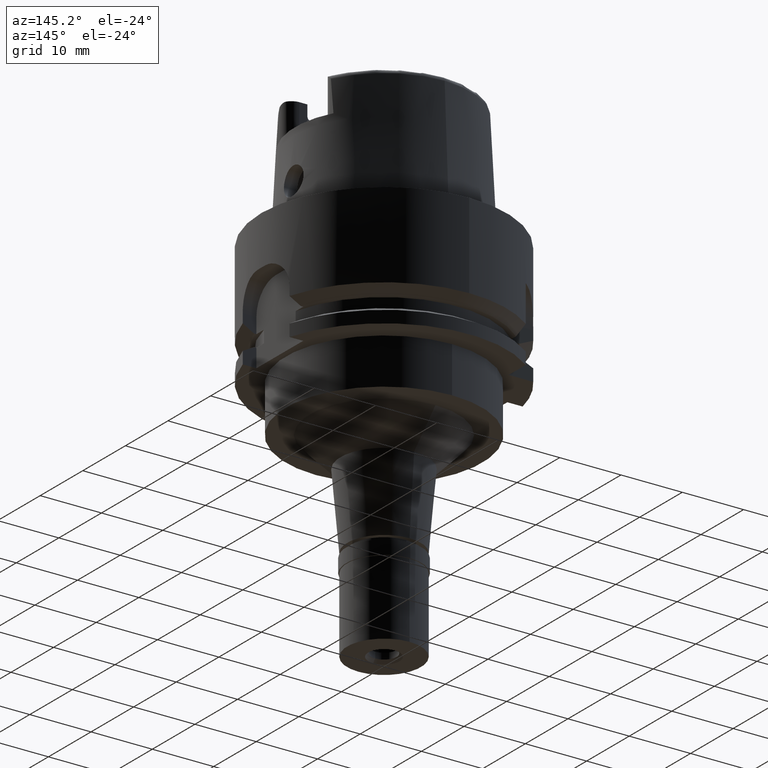
[diagram: clean part render]
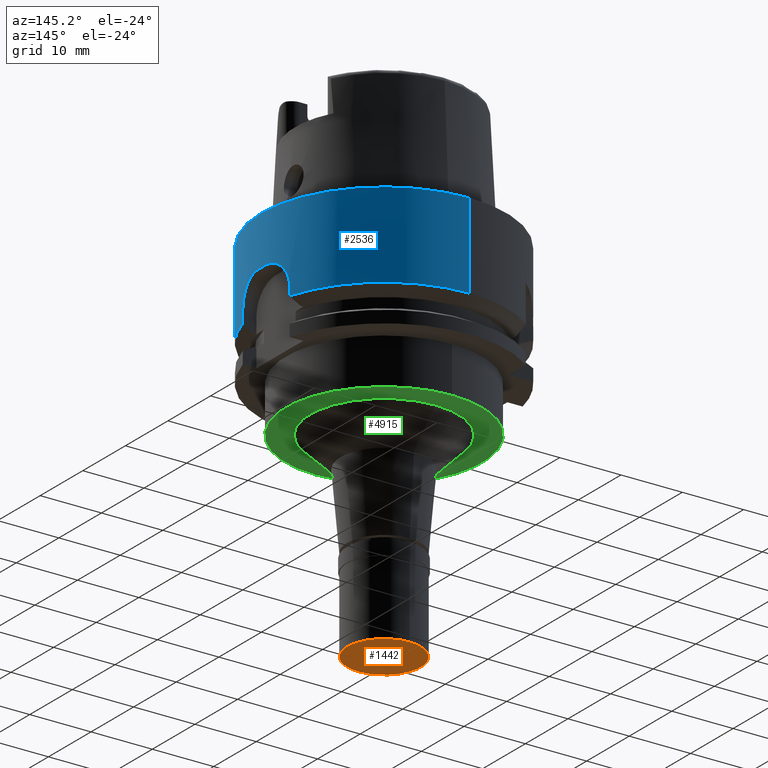
[diagram: same view with three faces highlighted in distinct colors, each labeled with its STEP entity id]
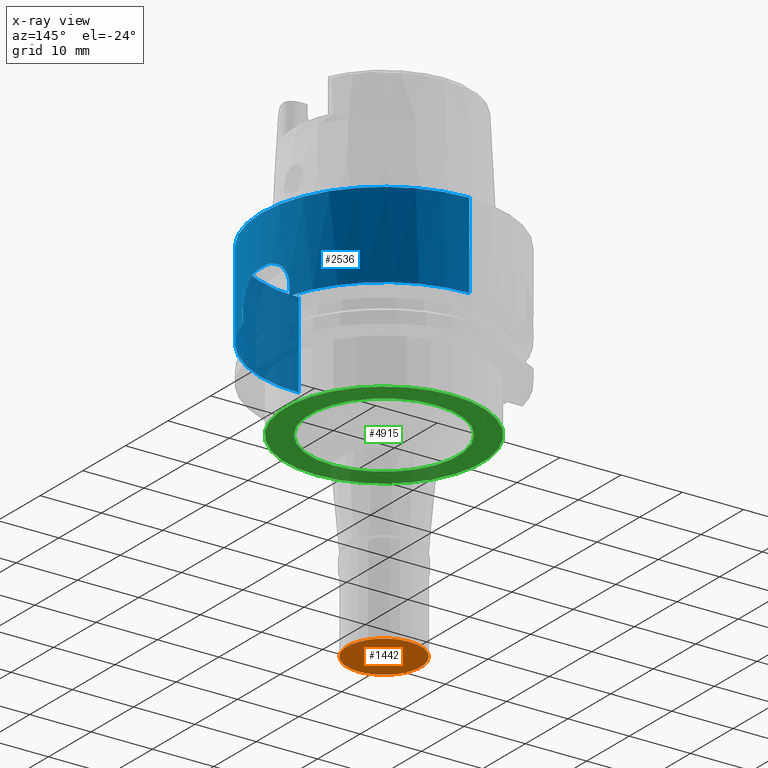
[diagram: x-ray of the same camera — body ghosted, the three highlighted faces saturated]
A machine part, auxiliary view with three faces highlighted in distinct colors.
The next image is the same camera in x-ray (body ghosted, the three faces saturated) — at least one of them is partly hidden behind the body in this view.
Their STEP definitions:

[orange] entity #1442 — the highlighted planar face has unit normal (0, 0, 1).
#163 = CARTESIAN_POINT ( 'NONE',  ( 0.0000000000000000000, -6.000000000000000000, -14.50000000000000000 ) ) ;
#346 = AXIS2_PLACEMENT_3D ( 'NONE', #3331, #4565, #492 ) ;
#492 = DIRECTION ( 'NONE',  ( 0.0000000000000000000, 1.000000000000000000, 0.0000000000000000000 ) ) ;
#523 = ORIENTED_EDGE ( 'NONE', *, *, #4232, .F. ) ;
#596 = EDGE_CURVE ( 'NONE', #1057, #4833, #3185, .T. ) ;
#784 = CIRCLE ( 'NONE', #3675, 2.550000000000000266 ) ;
#972 = FACE_BOUND ( 'NONE', #2917, .T. ) ;
#1057 = VERTEX_POINT ( 'NONE', #163 ) ;
#1248 = DIRECTION ( 'NONE',  ( 0.0000000000000000000, 0.0000000000000000000, -1.000000000000000000 ) ) ;
#1292 = ORIENTED_EDGE ( 'NONE', *, *, #4263, .F. ) ;
#1364 = DIRECTION ( 'NONE',  ( 0.0000000000000000000, -1.000000000000000000, 0.0000000000000000000 ) ) ;
#1442 = ADVANCED_FACE ( 'NONE', ( #5011, #972 ), #3845, .F. ) ;
#1775 = DIRECTION ( 'NONE',  ( 0.0000000000000000000, 0.0000000000000000000, 1.000000000000000000 ) ) ;
#1915 = CIRCLE ( 'NONE', #3939, 2.550000000000000266 ) ;
#2083 = CIRCLE ( 'NONE', #346, 6.000000000000000000 ) ;
#2467 = DIRECTION ( 'NONE',  ( 0.0000000000000000000, -1.000000000000000000, 0.0000000000000000000 ) ) ;
#2564 = VERTEX_POINT ( 'NONE', #3902 ) ;
#2598 = DIRECTION ( 'NONE',  ( 0.0000000000000000000, 0.0000000000000000000, 1.000000000000000000 ) ) ;
#2917 = EDGE_LOOP ( 'NONE', ( #4650, #1292 ) ) ;
#3011 = CARTESIAN_POINT ( 'NONE',  ( 0.0000000000000000000, 0.0000000000000000000, -14.50000000000000000 ) ) ;
#3185 = CIRCLE ( 'NONE', #3188, 6.000000000000000000 ) ;
#3188 = AXIS2_PLACEMENT_3D ( 'NONE', #3897, #1775, #1364 ) ;
#3331 = CARTESIAN_POINT ( 'NONE',  ( 0.0000000000000000000, 0.0000000000000000000, -14.50000000000000000 ) ) ;
#3606 = VERTEX_POINT ( 'NONE', #3803 ) ;
#3675 = AXIS2_PLACEMENT_3D ( 'NONE', #4540, #1248, #2467 ) ;
#3803 = CARTESIAN_POINT ( 'NONE',  ( 0.0000000000000000000, 2.550000000000000266, -14.50000000000000000 ) ) ;
#3845 = PLANE ( 'NONE',  #4205 ) ;
#3879 = DIRECTION ( 'NONE',  ( 1.000000000000000000, 0.0000000000000000000, 0.0000000000000000000 ) ) ;
#3897 = CARTESIAN_POINT ( 'NONE',  ( 0.0000000000000000000, 0.0000000000000000000, -14.50000000000000000 ) ) ;
#3902 = CARTESIAN_POINT ( 'NONE',  ( 0.0000000000000000000, -2.550000000000000266, -14.50000000000000000 ) ) ;
#3939 = AXIS2_PLACEMENT_3D ( 'NONE', #4712, #5118, #3954 ) ;
#3954 = DIRECTION ( 'NONE',  ( 0.0000000000000000000, 1.000000000000000000, 0.0000000000000000000 ) ) ;
#4155 = EDGE_CURVE ( 'NONE', #3606, #2564, #1915, .T. ) ;
#4205 = AXIS2_PLACEMENT_3D ( 'NONE', #3011, #2598, #3879 ) ;
#4232 = EDGE_CURVE ( 'NONE', #4833, #1057, #2083, .T. ) ;
#4254 = EDGE_LOOP ( 'NONE', ( #523, #4403 ) ) ;
#4263 = EDGE_CURVE ( 'NONE', #2564, #3606, #784, .T. ) ;
#4403 = ORIENTED_EDGE ( 'NONE', *, *, #596, .F. ) ;
#4540 = CARTESIAN_POINT ( 'NONE',  ( 0.0000000000000000000, 0.0000000000000000000, -14.50000000000000000 ) ) ;
#4565 = DIRECTION ( 'NONE',  ( 0.0000000000000000000, 0.0000000000000000000, 1.000000000000000000 ) ) ;
#4650 = ORIENTED_EDGE ( 'NONE', *, *, #4155, .F. ) ;
#4712 = CARTESIAN_POINT ( 'NONE',  ( 0.0000000000000000000, 0.0000000000000000000, -14.50000000000000000 ) ) ;
#4726 = CARTESIAN_POINT ( 'NONE',  ( 0.0000000000000000000, 6.000000000000000000, -14.50000000000000000 ) ) ;
#4833 = VERTEX_POINT ( 'NONE', #4726 ) ;
#5011 = FACE_OUTER_BOUND ( 'NONE', #4254, .T. ) ;
#5118 = DIRECTION ( 'NONE',  ( 0.0000000000000000000, 0.0000000000000000000, -1.000000000000000000 ) ) ;

[blue] entity #2536 — the highlighted cylindrical surface (partial cylindrical patch) has radius 20 mm, axis along (0, 0, -1).
#6 = DIRECTION ( 'NONE',  ( 0.0000000000000000000, 0.0000000000000000000, -1.000000000000000000 ) ) ;
#20 = VERTEX_POINT ( 'NONE', #4233 ) ;
#62 = FACE_OUTER_BOUND ( 'NONE', #1587, .T. ) ;
#138 = CARTESIAN_POINT ( 'NONE',  ( 19.55296419441644673, 4.205003847198735656, -9.341197098581975666 ) ) ;
#139 = CARTESIAN_POINT ( 'NONE',  ( 19.45475001896209477, -4.645027512865630648, -9.844582148829520207 ) ) ;
#149 = ORIENTED_EDGE ( 'NONE', *, *, #1774, .T. ) ;
#168 = CARTESIAN_POINT ( 'NONE',  ( 19.90130048979596822, -1.985477844311701601, -8.106792410126946180 ) ) ;
#197 = CARTESIAN_POINT ( 'NONE',  ( 19.86146913379048229, -2.348870910567845804, -8.206248310992075190 ) ) ;
#219 = CARTESIAN_POINT ( 'NONE',  ( 19.31804990225733221, 5.178514594697598561, -10.82961816772562180 ) ) ;
#220 = CARTESIAN_POINT ( 'NONE',  ( 19.69274280960210532, -3.492270246692281699, -8.753189259784717180 ) ) ;
#243 = CARTESIAN_POINT ( 'NONE',  ( 19.78036263143424023, -2.958436038870658980, -8.445803820326757361 ) ) ;
#283 = CARTESIAN_POINT ( 'NONE',  ( 19.22888452303000051, 5.500000000000000000, -12.50000000000000000 ) ) ;
#345 = AXIS2_PLACEMENT_3D ( 'NONE', #631, #3466, #3822 ) ;
#429 = CARTESIAN_POINT ( 'NONE',  ( 0.0000000000000000000, -20.00000000000000000, 2.605323364453999397E-14 ) ) ;
#473 = CYLINDRICAL_SURFACE ( 'NONE', #5377, 20.00000000000000000 ) ;
#586 = CARTESIAN_POINT ( 'NONE',  ( 19.69005981295651253, -3.507380173998807749, -8.763261857095093532 ) ) ;
#610 = CARTESIAN_POINT ( 'NONE',  ( 19.66628160559911009, 3.637934761167456177, -8.851330630267426613 ) ) ;
#611 = CARTESIAN_POINT ( 'NONE',  ( 19.37849366734219814, -4.950199303947448115, -10.34065976105194729 ) ) ;
#631 = CARTESIAN_POINT ( 'NONE',  ( 0.0000000000000000000, 1.516112737344000072E-14, -8.000000000000000000 ) ) ;
#642 = CARTESIAN_POINT ( 'NONE',  ( 19.22888452303000051, 5.500000000000000000, -12.50000000000000000 ) ) ;
#643 = CARTESIAN_POINT ( 'NONE',  ( 19.82004296057248283, -2.676438803614427542, -8.323919434735174150 ) ) ;
#665 = CARTESIAN_POINT ( 'NONE',  ( 19.52092648649921713, 4.352013357736789878, -9.497352550121828330 ) ) ;
#666 = CARTESIAN_POINT ( 'NONE',  ( 19.69235704559155309, -3.494444581088437918, -8.754636474597065288 ) ) ;
#760 = CARTESIAN_POINT ( 'NONE',  ( 19.80285723665335240, 2.801244792829966634, -8.376053882364153935 ) ) ;
#838 = LINE ( 'NONE', #429, #3148 ) ;
#895 = DIRECTION ( 'NONE',  ( 0.0000000000000000000, 4.549132851063000272E-14, -1.000000000000000000 ) ) ;
#956 = CARTESIAN_POINT ( 'NONE',  ( 19.25972180874073558, 5.392789425413389459, -11.51281114946818107 ) ) ;
#958 = ORIENTED_EDGE ( 'NONE', *, *, #5294, .F. ) ;
#983 = LINE ( 'NONE', #4067, #3909 ) ;
#988 = CARTESIAN_POINT ( 'NONE',  ( 19.32043459714229883, 5.169573308567883885, -10.80746306776317311 ) ) ;
#1017 = CARTESIAN_POINT ( 'NONE',  ( 19.39600761098000348, -4.882168379427534788, -10.21950968929079906 ) ) ;
#1020 = EDGE_CURVE ( 'NONE', #3853, #4007, #983, .T. ) ;
#1068 = CARTESIAN_POINT ( 'NONE',  ( 19.59903277049964743, 3.985266028511206038, -9.129531640290618810 ) ) ;
#1069 = CARTESIAN_POINT ( 'NONE',  ( 19.35532304041984020, -5.038565840620426783, -10.51400096850839816 ) ) ;
#1077 = ORIENTED_EDGE ( 'NONE', *, *, #3895, .F. ) ;
#1091 = ORIENTED_EDGE ( 'NONE', *, *, #2334, .T. ) ;
#1096 = CARTESIAN_POINT ( 'NONE',  ( 19.32361500977883040, -5.157669752052217227, -10.77843254344513291 ) ) ;
#1111 = CARTESIAN_POINT ( 'NONE',  ( 0.0000000000000000000, 1.516112737344000072E-14, 4.263256414560999963E-14 ) ) ;
#1145 = DIRECTION ( 'NONE',  ( -9.328064232721404041E-08, -3.261220581674141683E-07, -0.9999999999999424904 ) ) ;
#1181 = CARTESIAN_POINT ( 'NONE',  ( 19.22888455244999761, 5.499999897136000016, -13.97927491984000170 ) ) ;
#1260 = ORIENTED_EDGE ( 'NONE', *, *, #3144, .F. ) ;
#1268 = DIRECTION ( 'NONE',  ( 0.0000000000000000000, 0.0000000000000000000, 1.000000000000000000 ) ) ;
#1269 = CARTESIAN_POINT ( 'NONE',  ( 19.22888452303000051, -5.500000000000000000, -12.50000000000000000 ) ) ;
#1368 = CARTESIAN_POINT ( 'NONE',  ( 0.0000000000000000000, 1.516112737344000072E-14, 23.80000000000000071 ) ) ;
#1390 = CARTESIAN_POINT ( 'NONE',  ( 19.28670443373762922, 5.294861695531413837, -11.15473780887399968 ) ) ;
#1422 = CARTESIAN_POINT ( 'NONE',  ( 19.48952998782354129, 4.491951542668962460, -9.660445852778138942 ) ) ;
#1423 = CARTESIAN_POINT ( 'NONE',  ( 19.83212263906065687, -2.585548439230807016, -8.288267333564322215 ) ) ;
#1425 = ORIENTED_EDGE ( 'NONE', *, *, #1020, .F. ) ;
#1448 = CARTESIAN_POINT ( 'NONE',  ( 19.32540896272644559, -5.150933915506874960, -10.76223295654363454 ) ) ;
#1460 = ORIENTED_EDGE ( 'NONE', *, *, #4431, .T. ) ;
#1475 = CARTESIAN_POINT ( 'NONE',  ( 19.72182351028626002, -3.324155796168377641, -8.646448939527333621 ) ) ;
#1498 = CARTESIAN_POINT ( 'NONE',  ( 19.32433016885746113, -5.154984032051151743, -10.77196065785564549 ) ) ;
#1587 = EDGE_LOOP ( 'NONE', ( #149, #958, #1077, #2245, #1425, #1091, #2355, #1460, #4429, #1260 ) ) ;
#1615 = CARTESIAN_POINT ( 'NONE',  ( 0.0000000000000000000, 1.047199923064999921E-14, -13.97927405783999966 ) ) ;
#1710 = AXIS2_PLACEMENT_3D ( 'NONE', #1111, #6, #4045 ) ;
#1774 = EDGE_CURVE ( 'NONE', #2959, #20, #4627, .T. ) ;
#1800 = CARTESIAN_POINT ( 'NONE',  ( 19.31947846059804874, 5.173159134743519516, -10.81632376075026691 ) ) ;
#1829 = CARTESIAN_POINT ( 'NONE',  ( 19.74957711522806392, -3.155380211574884797, -8.549072167331129180 ) ) ;
#1840 = CARTESIAN_POINT ( 'NONE',  ( 19.22888452303000051, -5.499999999998999911, -13.97927405783999966 ) ) ;
#1863 = CARTESIAN_POINT ( 'NONE',  ( 19.81758751915466732, -2.694603442504719837, -8.331257369122207379 ) ) ;
#1888 = CARTESIAN_POINT ( 'NONE',  ( 19.26935846052533918, 5.358219424021689825, -11.36942809227169704 ) ) ;
#1889 = CARTESIAN_POINT ( 'NONE',  ( 19.55921014826529003, -4.175848118539613907, -9.311895862119277112 ) ) ;
#1911 = CARTESIAN_POINT ( 'NONE',  ( 19.82370700702814403, -2.649184798636287308, -8.313013169469069652 ) ) ;
#1974 = VERTEX_POINT ( 'NONE', #1269 ) ;
#1981 = LINE ( 'NONE', #3696, #2324 ) ;
#2031 = B_SPLINE_CURVE_WITH_KNOTS ( 'NONE', 3,
 ( #642, #2260, #4414, #956, #1888, #1390, #3976, #3058, #3509, #219, #1800, #988, #5170, #2209, #2641, #3562, #3951, #1422, #5221, #665, #3139, #3084, #4818, #4760, #138, #2668, #1068, #4362, #610, #2723, #3866, #5277, #4439, #4463, #760, #5349, #4074, #3588, #3613 ),
 .UNSPECIFIED., .F., .F.,
 ( 4, 2, 2, 1, 1, 1, 1, 2, 2, 2, 2, 2, 1, 1, 2, 2, 2, 2, 2, 1, 2, 2, 4 ),
 ( 0.0000000000000000000, 0.1250000000000127398, 0.1875000000000190958, 0.2187500000000222322, 0.2343750000000238698, 0.2421875000000249245, 0.2460937500000258127, 0.2480468750000261735, 0.2500000000000265343, 0.3750000000000142109, 0.4375000000000082712, 0.4687500000000053291, 0.4843750000000038303, 0.4921875000000034417, 0.4960937500000034417, 0.5000000000000034417, 0.5625000000000032196, 0.6250000000000029976, 0.6875000000000026645, 0.7187500000000024425, 0.7343750000000021094, 0.7500000000000017764, 1.000000000000000000 ),
 .UNSPECIFIED. ) ;
#2039 = EDGE_CURVE ( 'NONE', #2848, #4989, #838, .T. ) ;
#2209 = CARTESIAN_POINT ( 'NONE',  ( 19.34392774223625366, 5.081398271265452848, -10.59154111409075583 ) ) ;
#2212 = CARTESIAN_POINT ( 'NONE',  ( 19.70267184871935839, -3.435874800762945380, -8.716184561157648503 ) ) ;
#2235 = CARTESIAN_POINT ( 'NONE',  ( 19.33325722711048300, -5.121510815747222445, -10.69317572620611756 ) ) ;
#2245 = ORIENTED_EDGE ( 'NONE', *, *, #4553, .T. ) ;
#2260 = CARTESIAN_POINT ( 'NONE',  ( 19.22888452302999696, 5.499999999999999112, -12.22452543201927888 ) ) ;
#2261 = CARTESIAN_POINT ( 'NONE',  ( 19.96138875464934870, -1.271571913018608946, -8.000000000000000000 ) ) ;
#2289 = CARTESIAN_POINT ( 'NONE',  ( 19.56053727397975806, -4.169622719901863839, -9.305706481945396291 ) ) ;
#2309 = CARTESIAN_POINT ( 'NONE',  ( 19.64440581769368777, -3.753017091490892465, -8.939610780094586318 ) ) ;
#2324 = VECTOR ( 'NONE', #1145, 1000.000000000000000 ) ;
#2334 = EDGE_CURVE ( 'NONE', #3853, #2848, #5034, .T. ) ;
#2355 = ORIENTED_EDGE ( 'NONE', *, *, #2039, .T. ) ;
#2536 = ADVANCED_FACE ( 'NONE', ( #62 ), #473, .T. ) ;
#2591 = CARTESIAN_POINT ( 'NONE',  ( 0.0000000000000000000, 20.00000000000000000, -13.97927405783999966 ) ) ;
#2641 = CARTESIAN_POINT ( 'NONE',  ( 19.37460705601824529, 4.968141796494184526, -10.35745692778625049 ) ) ;
#2642 = CARTESIAN_POINT ( 'NONE',  ( 19.84841866433621860, -2.458145572844637083, -8.241564943246137531 ) ) ;
#2644 = VERTEX_POINT ( 'NONE', #1840 ) ;
#2664 = DIRECTION ( 'NONE',  ( 0.0000000000000000000, -4.549132851063000272E-14, -1.000000000000000000 ) ) ;
#2668 = CARTESIAN_POINT ( 'NONE',  ( 19.57669243206868970, 4.094476975649305572, -9.229513419691846465 ) ) ;
#2669 = CARTESIAN_POINT ( 'NONE',  ( 19.56252047788020576, -4.160306109553071785, -9.296470942878881871 ) ) ;
#2698 = CARTESIAN_POINT ( 'NONE',  ( 19.69198582758710714, -3.496535353582432837, -8.756030016343171241 ) ) ;
#2723 = CARTESIAN_POINT ( 'NONE',  ( 19.71061695534601910, 3.394883020104607851, -8.687386291031449659 ) ) ;
#2724 = CARTESIAN_POINT ( 'NONE',  ( 19.34811621286810990, -5.065741419847156202, -10.57039266656771304 ) ) ;
#2832 = CARTESIAN_POINT ( 'NONE',  ( 19.97498435543999662, -1.000000000000000000, -8.000000000000000000 ) ) ;
#2839 = DIRECTION ( 'NONE',  ( -1.988894616136989745E-08, 6.953698802927961822E-08, 0.9999999999999973355 ) ) ;
#2848 = VERTEX_POINT ( 'NONE', #3703 ) ;
#2865 = CIRCLE ( 'NONE', #4385, 20.00000000000000000 ) ;
#2959 = VERTEX_POINT ( 'NONE', #2832 ) ;
#2995 = CARTESIAN_POINT ( 'NONE',  ( 0.0000000000000000000, 1.047199923064999921E-14, -13.97927405783999966 ) ) ;
#3058 = CARTESIAN_POINT ( 'NONE',  ( 19.30832667117934776, 5.214864524820000291, -10.92283486259329628 ) ) ;
#3084 = CARTESIAN_POINT ( 'NONE',  ( 19.54241317768097730, 4.253900879331266260, -9.391460221044306778 ) ) ;
#3085 = CARTESIAN_POINT ( 'NONE',  ( 19.73879052446683957, -3.222291276281035621, -8.586223659239390571 ) ) ;
#3114 = CARTESIAN_POINT ( 'NONE',  ( 19.32339560065396356, -5.158493796155410038, -10.78042079026245581 ) ) ;
#3139 = CARTESIAN_POINT ( 'NONE',  ( 19.53068917781459390, 4.307772580741984214, -9.448423039921937772 ) ) ;
#3140 = CARTESIAN_POINT ( 'NONE',  ( 19.94126833813949773, -1.553962042627266005, -8.024635870376794600 ) ) ;
#3144 = EDGE_CURVE ( 'NONE', #2959, #1974, #4509, .T. ) ;
#3148 = VECTOR ( 'NONE', #895, 1000.000000000000000 ) ;
#3306 = EDGE_CURVE ( 'NONE', #1974, #2644, #1981, .T. ) ;
#3401 = DIRECTION ( 'NONE',  ( 0.0000000000000000000, -1.000000000000000000, 0.0000000000000000000 ) ) ;
#3466 = DIRECTION ( 'NONE',  ( 0.0000000000000000000, 0.0000000000000000000, 1.000000000000000000 ) ) ;
#3478 = CARTESIAN_POINT ( 'NONE',  ( 19.59746944698490623, -3.991898400757772247, -9.138091725068191451 ) ) ;
#3509 = CARTESIAN_POINT ( 'NONE',  ( 19.31475612479188797, 5.190847870711519541, -10.86066141086707759 ) ) ;
#3510 = CARTESIAN_POINT ( 'NONE',  ( 19.97498435543999662, -1.000000000000000000, -8.000000000000000000 ) ) ;
#3537 = CARTESIAN_POINT ( 'NONE',  ( 19.56709556094921609, -4.138720174377537475, -9.275259194944649010 ) ) ;
#3562 = CARTESIAN_POINT ( 'NONE',  ( 19.43284795425315181, 4.733462173758587355, -9.983470598133687091 ) ) ;
#3585 = AXIS2_PLACEMENT_3D ( 'NONE', #1615, #1268, #3741 ) ;
#3588 = CARTESIAN_POINT ( 'NONE',  ( 19.94751913936689292, 1.548617261185093463, -7.999999999999996447 ) ) ;
#3589 = CARTESIAN_POINT ( 'NONE',  ( 19.69332107127808840, -3.489009252825106877, -8.751020824290439037 ) ) ;
#3613 = CARTESIAN_POINT ( 'NONE',  ( 19.97498435543999662, 1.000000000000000000, -8.000000000000000000 ) ) ;
#3696 = CARTESIAN_POINT ( 'NONE',  ( 19.22888452303000051, -5.500000000000000000, -12.50000000000000000 ) ) ;
#3703 = CARTESIAN_POINT ( 'NONE',  ( 0.0000000000000000000, -20.00000000000000000, 4.263256414560999963E-14 ) ) ;
#3741 = DIRECTION ( 'NONE',  ( 0.9614442261514726251, 0.2749999999999924727, 0.0000000000000000000 ) ) ;
#3763 = VERTEX_POINT ( 'NONE', #283 ) ;
#3822 = DIRECTION ( 'NONE',  ( 0.9987492177719088371, -0.04999999999999998890, 0.0000000000000000000 ) ) ;
#3853 = VERTEX_POINT ( 'NONE', #5266 ) ;
#3859 = VERTEX_POINT ( 'NONE', #4087 ) ;
#3864 = DIRECTION ( 'NONE',  ( 0.0000000000000000000, -1.000000000000000000, 0.0000000000000000000 ) ) ;
#3866 = CARTESIAN_POINT ( 'NONE',  ( 19.73203787189667580, 3.268433543129441343, -8.610739621816541955 ) ) ;
#3893 = CARTESIAN_POINT ( 'NONE',  ( 19.50217906037504889, -4.442594655561672212, -9.578652356969826087 ) ) ;
#3895 = EDGE_CURVE ( 'NONE', #3859, #3763, #4452, .T. ) ;
#3909 = VECTOR ( 'NONE', #2664, 1000.000000000000000 ) ;
#3921 = CARTESIAN_POINT ( 'NONE',  ( 19.69466765814298981, -3.481403847528156792, -8.745977827731390875 ) ) ;
#3951 = CARTESIAN_POINT ( 'NONE',  ( 19.45429857492511161, 4.644413220644694640, -9.855113310063687848 ) ) ;
#3952 = CARTESIAN_POINT ( 'NONE',  ( 19.33808104367410152, -5.103433063482147425, -10.65263795316250572 ) ) ;
#3976 = CARTESIAN_POINT ( 'NONE',  ( 19.29610016922762128, 5.260308973715339675, -11.04749097637876787 ) ) ;
#3977 = CARTESIAN_POINT ( 'NONE',  ( 19.60625021335553697, -3.948171063091267641, -9.099825008705247242 ) ) ;
#3999 = CARTESIAN_POINT ( 'NONE',  ( 19.57603615629243521, -4.096178509312080607, -9.234172121817493917 ) ) ;
#4007 = VERTEX_POINT ( 'NONE', #2591 ) ;
#4045 = DIRECTION ( 'NONE',  ( 0.0000000000000000000, 1.000000000000000000, 0.0000000000000000000 ) ) ;
#4067 = CARTESIAN_POINT ( 'NONE',  ( 0.0000000000000000000, 20.00000000000000000, 2.605323364453999397E-14 ) ) ;
#4074 = CARTESIAN_POINT ( 'NONE',  ( 19.89335576416678464, 2.144327266720722491, -8.101629736575114649 ) ) ;
#4087 = CARTESIAN_POINT ( 'NONE',  ( 19.22888455244999761, 5.499999897136000016, -13.97927491984000170 ) ) ;
#4233 = CARTESIAN_POINT ( 'NONE',  ( 19.97498435543999662, 1.000000000000000000, -8.000000000000000000 ) ) ;
#4257 = DIRECTION ( 'NONE',  ( 0.0000000000000000000, 0.0000000000000000000, -1.000000000000000000 ) ) ;
#4306 = DIRECTION ( 'NONE',  ( 0.0000000000000000000, 0.0000000000000000000, 1.000000000000000000 ) ) ;
#4334 = CARTESIAN_POINT ( 'NONE',  ( 19.69735007035666285, -3.466207568193138577, -8.735958413001903011 ) ) ;
#4362 = CARTESIAN_POINT ( 'NONE',  ( 19.64372920628987274, 3.757532817547816872, -8.940803042127072331 ) ) ;
#4363 = CARTESIAN_POINT ( 'NONE',  ( 19.67792965753406520, -3.575210498473825105, -8.806737363578259092 ) ) ;
#4378 = VECTOR ( 'NONE', #2839, 1000.000000000000000 ) ;
#4385 = AXIS2_PLACEMENT_3D ( 'NONE', #2995, #4306, #3864 ) ;
#4393 = CARTESIAN_POINT ( 'NONE',  ( 19.55831066661009743, -4.180059734994486575, -9.316098562114493831 ) ) ;
#4414 = CARTESIAN_POINT ( 'NONE',  ( 19.23659384445767984, 5.474636522609243272, -11.94125941521697598 ) ) ;
#4415 = CARTESIAN_POINT ( 'NONE',  ( 19.81613331589480964, -2.705294117996441816, -8.335622835694378452 ) ) ;
#4429 = ORIENTED_EDGE ( 'NONE', *, *, #3306, .F. ) ;
#4431 = EDGE_CURVE ( 'NONE', #4989, #2644, #2865, .T. ) ;
#4439 = CARTESIAN_POINT ( 'NONE',  ( 19.77827469353826828, 2.972166186196815385, -8.453964676622307550 ) ) ;
#4440 = CARTESIAN_POINT ( 'NONE',  ( 19.79878730080169547, -2.832227115074450019, -8.387867482994630919 ) ) ;
#4452 = LINE ( 'NONE', #1181, #4378 ) ;
#4463 = CARTESIAN_POINT ( 'NONE',  ( 19.79308022628153196, 2.869919326058285591, -8.406735276225765219 ) ) ;
#4509 = B_SPLINE_CURVE_WITH_KNOTS ( 'NONE', 3,
 ( #3510, #2261, #3140, #168, #5171, #197, #2642, #1423, #1911, #643, #1863, #4415, #4440, #243, #1829, #3085, #1475, #4819, #2212, #4334, #3921, #3589, #220, #666, #2698, #586, #4363, #2309, #5256, #3977, #3478, #4761, #3999, #3537, #2669, #2289, #1889, #4393, #3893, #139, #1017, #611, #1069, #2724, #3952, #2235, #5195, #1448, #1498, #1096, #3114, #5139, #5224, #4789 ),
 .UNSPECIFIED., .F., .F.,
 ( 4, 2, 2, 1, 1, 1, 2, 2, 2, 2, 1, 1, 1, 1, 1, 2, 2, 2, 2, 2, 1, 1, 1, 2, 2, 2, 2, 2, 1, 1, 1, 2, 2, 4 ),
 ( 0.0000000000000000000, 0.1250000000002025879, 0.1875000000003038403, 0.2187500000003544942, 0.2343750000003799183, 0.2421875000003927692, 0.2460937500003992084, 0.2500000000004056200, 0.3125000000005114797, 0.3437500000005645484, 0.3593750000005911938, 0.3671875000006046275, 0.3710937500006115108, 0.3730468750006147860, 0.3740234375006165068, 0.3745117187506176171, 0.3750000000006187828, 0.4375000000005628831, 0.4687500000005350165, 0.4843750000005210832, 0.4921875000005141998, 0.4960937500005107581, 0.4980468750005090373, 0.4990234375005081491, 0.5000000000005072609, 0.6250000000003949063, 0.6875000000003385070, 0.7187500000003100853, 0.7343750000002956524, 0.7421875000002889911, 0.7460937500002854383, 0.7480468750002834399, 0.7500000000002813305, 1.000000000000000000 ),
 .UNSPECIFIED. ) ;
#4538 = CIRCLE ( 'NONE', #3585, 20.00000000000000355 ) ;
#4553 = EDGE_CURVE ( 'NONE', #3859, #4007, #4538, .T. ) ;
#4627 = CIRCLE ( 'NONE', #345, 20.00000000000000355 ) ;
#4760 = CARTESIAN_POINT ( 'NONE',  ( 19.55092273202935615, 4.214495000988332407, -9.350849250982893324 ) ) ;
#4761 = CARTESIAN_POINT ( 'NONE',  ( 19.58334025950979296, -4.060858163275669952, -9.201194439393757918 ) ) ;
#4789 = CARTESIAN_POINT ( 'NONE',  ( 19.22888452303000051, -5.500000000000000000, -12.50000000000000000 ) ) ;
#4818 = CARTESIAN_POINT ( 'NONE',  ( 19.54750936190909272, 4.230323080622071963, -9.367087402078649205 ) ) ;
#4819 = CARTESIAN_POINT ( 'NONE',  ( 19.71314322118629647, -3.375461581491484342, -8.677686041047527610 ) ) ;
#4989 = VERTEX_POINT ( 'NONE', #5121 ) ;
#5034 = CIRCLE ( 'NONE', #1710, 20.00000000000000000 ) ;
#5121 = CARTESIAN_POINT ( 'NONE',  ( 0.0000000000000000000, -20.00000000000000000, -13.97927405783999966 ) ) ;
#5139 = CARTESIAN_POINT ( 'NONE',  ( 19.26022498400375582, -5.395878705455601221, -11.35624237207579412 ) ) ;
#5170 = CARTESIAN_POINT ( 'NONE',  ( 19.32104432762980295, 5.167285538178935766, -10.80184115673806211 ) ) ;
#5171 = CARTESIAN_POINT ( 'NONE',  ( 19.88634666975163867, -2.130603880443658671, -8.141702159504934144 ) ) ;
#5195 = CARTESIAN_POINT ( 'NONE',  ( 19.32796853517805857, -5.141331757605171582, -10.73939656596193970 ) ) ;
#5221 = CARTESIAN_POINT ( 'NONE',  ( 19.50178303910475819, 4.437984910562893681, -9.595210715118074773 ) ) ;
#5224 = CARTESIAN_POINT ( 'NONE',  ( 19.22888452303000761, -5.500000000000001776, -11.94492904262039090 ) ) ;
#5256 = CARTESIAN_POINT ( 'NONE',  ( 19.63067643662910555, -3.824796506485988790, -8.995412285069125602 ) ) ;
#5266 = CARTESIAN_POINT ( 'NONE',  ( 0.0000000000000000000, 20.00000000000000000, 2.605323364453999397E-14 ) ) ;
#5277 = CARTESIAN_POINT ( 'NONE',  ( 19.76304910923843750, 3.072040407749414559, -8.504729945813515712 ) ) ;
#5294 = EDGE_CURVE ( 'NONE', #3763, #20, #2031, .T. ) ;
#5349 = CARTESIAN_POINT ( 'NONE',  ( 19.80744038394420059, 2.768531926852070502, -8.361899297413128096 ) ) ;
#5377 = AXIS2_PLACEMENT_3D ( 'NONE', #1368, #4257, #3401 ) ;

[green] entity #4915 — the highlighted planar face has unit normal (0, 0, -1).
#308 = AXIS2_PLACEMENT_3D ( 'NONE', #1654, #4587, #1169 ) ;
#689 = CARTESIAN_POINT ( 'NONE',  ( 0.0000000000000000000, -12.07611056136999927, -27.50000000000000000 ) ) ;
#713 = EDGE_LOOP ( 'NONE', ( #1748, #4234 ) ) ;
#779 = EDGE_CURVE ( 'NONE', #2490, #3428, #1522, .T. ) ;
#790 = CARTESIAN_POINT ( 'NONE',  ( 0.0000000000000000000, 1.516112737344000072E-14, -27.50000000000000000 ) ) ;
#1035 = CIRCLE ( 'NONE', #1817, 16.00000000000000000 ) ;
#1169 = DIRECTION ( 'NONE',  ( 0.0000000000000000000, -1.000000000000000000, 0.0000000000000000000 ) ) ;
#1296 = CARTESIAN_POINT ( 'NONE',  ( 0.0000000000000000000, 12.07611056136999927, -27.50000000000000000 ) ) ;
#1302 = AXIS2_PLACEMENT_3D ( 'NONE', #3289, #3791, #2455 ) ;
#1322 = FACE_BOUND ( 'NONE', #1578, .T. ) ;
#1378 = EDGE_CURVE ( 'NONE', #3371, #4683, #2426, .T. ) ;
#1522 = CIRCLE ( 'NONE', #308, 16.00000000000000000 ) ;
#1578 = EDGE_LOOP ( 'NONE', ( #3773, #4425 ) ) ;
#1654 = CARTESIAN_POINT ( 'NONE',  ( 0.0000000000000000000, 1.516112737344000072E-14, -27.50000000000000000 ) ) ;
#1748 = ORIENTED_EDGE ( 'NONE', *, *, #3348, .F. ) ;
#1817 = AXIS2_PLACEMENT_3D ( 'NONE', #790, #2438, #2032 ) ;
#2032 = DIRECTION ( 'NONE',  ( 0.0000000000000000000, 1.000000000000000000, 0.0000000000000000000 ) ) ;
#2426 = CIRCLE ( 'NONE', #1302, 12.07611056136999927 ) ;
#2438 = DIRECTION ( 'NONE',  ( 0.0000000000000000000, 0.0000000000000000000, 1.000000000000000000 ) ) ;
#2455 = DIRECTION ( 'NONE',  ( 0.0000000000000000000, -1.000000000000000000, 0.0000000000000000000 ) ) ;
#2490 = VERTEX_POINT ( 'NONE', #3430 ) ;
#2632 = FACE_OUTER_BOUND ( 'NONE', #713, .T. ) ;
#2685 = AXIS2_PLACEMENT_3D ( 'NONE', #5278, #4129, #5302 ) ;
#2962 = AXIS2_PLACEMENT_3D ( 'NONE', #4324, #4667, #5129 ) ;
#2965 = CARTESIAN_POINT ( 'NONE',  ( 0.0000000000000000000, 16.00000000000000000, -27.50000000000000000 ) ) ;
#2989 = PLANE ( 'NONE',  #2962 ) ;
#3272 = EDGE_CURVE ( 'NONE', #4683, #3371, #5047, .T. ) ;
#3289 = CARTESIAN_POINT ( 'NONE',  ( 0.0000000000000000000, 0.0000000000000000000, -27.50000000000000000 ) ) ;
#3348 = EDGE_CURVE ( 'NONE', #3428, #2490, #1035, .T. ) ;
#3371 = VERTEX_POINT ( 'NONE', #689 ) ;
#3428 = VERTEX_POINT ( 'NONE', #2965 ) ;
#3430 = CARTESIAN_POINT ( 'NONE',  ( 0.0000000000000000000, -16.00000000000000000, -27.50000000000000000 ) ) ;
#3773 = ORIENTED_EDGE ( 'NONE', *, *, #3272, .F. ) ;
#3791 = DIRECTION ( 'NONE',  ( 0.0000000000000000000, 0.0000000000000000000, -1.000000000000000000 ) ) ;
#4129 = DIRECTION ( 'NONE',  ( 0.0000000000000000000, 0.0000000000000000000, -1.000000000000000000 ) ) ;
#4234 = ORIENTED_EDGE ( 'NONE', *, *, #779, .F. ) ;
#4324 = CARTESIAN_POINT ( 'NONE',  ( 0.0000000000000000000, 0.0000000000000000000, -27.50000000000000000 ) ) ;
#4425 = ORIENTED_EDGE ( 'NONE', *, *, #1378, .F. ) ;
#4587 = DIRECTION ( 'NONE',  ( 0.0000000000000000000, 0.0000000000000000000, 1.000000000000000000 ) ) ;
#4667 = DIRECTION ( 'NONE',  ( 0.0000000000000000000, 0.0000000000000000000, -1.000000000000000000 ) ) ;
#4683 = VERTEX_POINT ( 'NONE', #1296 ) ;
#4915 = ADVANCED_FACE ( 'NONE', ( #2632, #1322 ), #2989, .T. ) ;
#5047 = CIRCLE ( 'NONE', #2685, 12.07611056136999927 ) ;
#5129 = DIRECTION ( 'NONE',  ( 0.0000000000000000000, -1.000000000000000000, 0.0000000000000000000 ) ) ;
#5278 = CARTESIAN_POINT ( 'NONE',  ( 0.0000000000000000000, 0.0000000000000000000, -27.50000000000000000 ) ) ;
#5302 = DIRECTION ( 'NONE',  ( 0.0000000000000000000, 1.000000000000000000, 0.0000000000000000000 ) ) ;